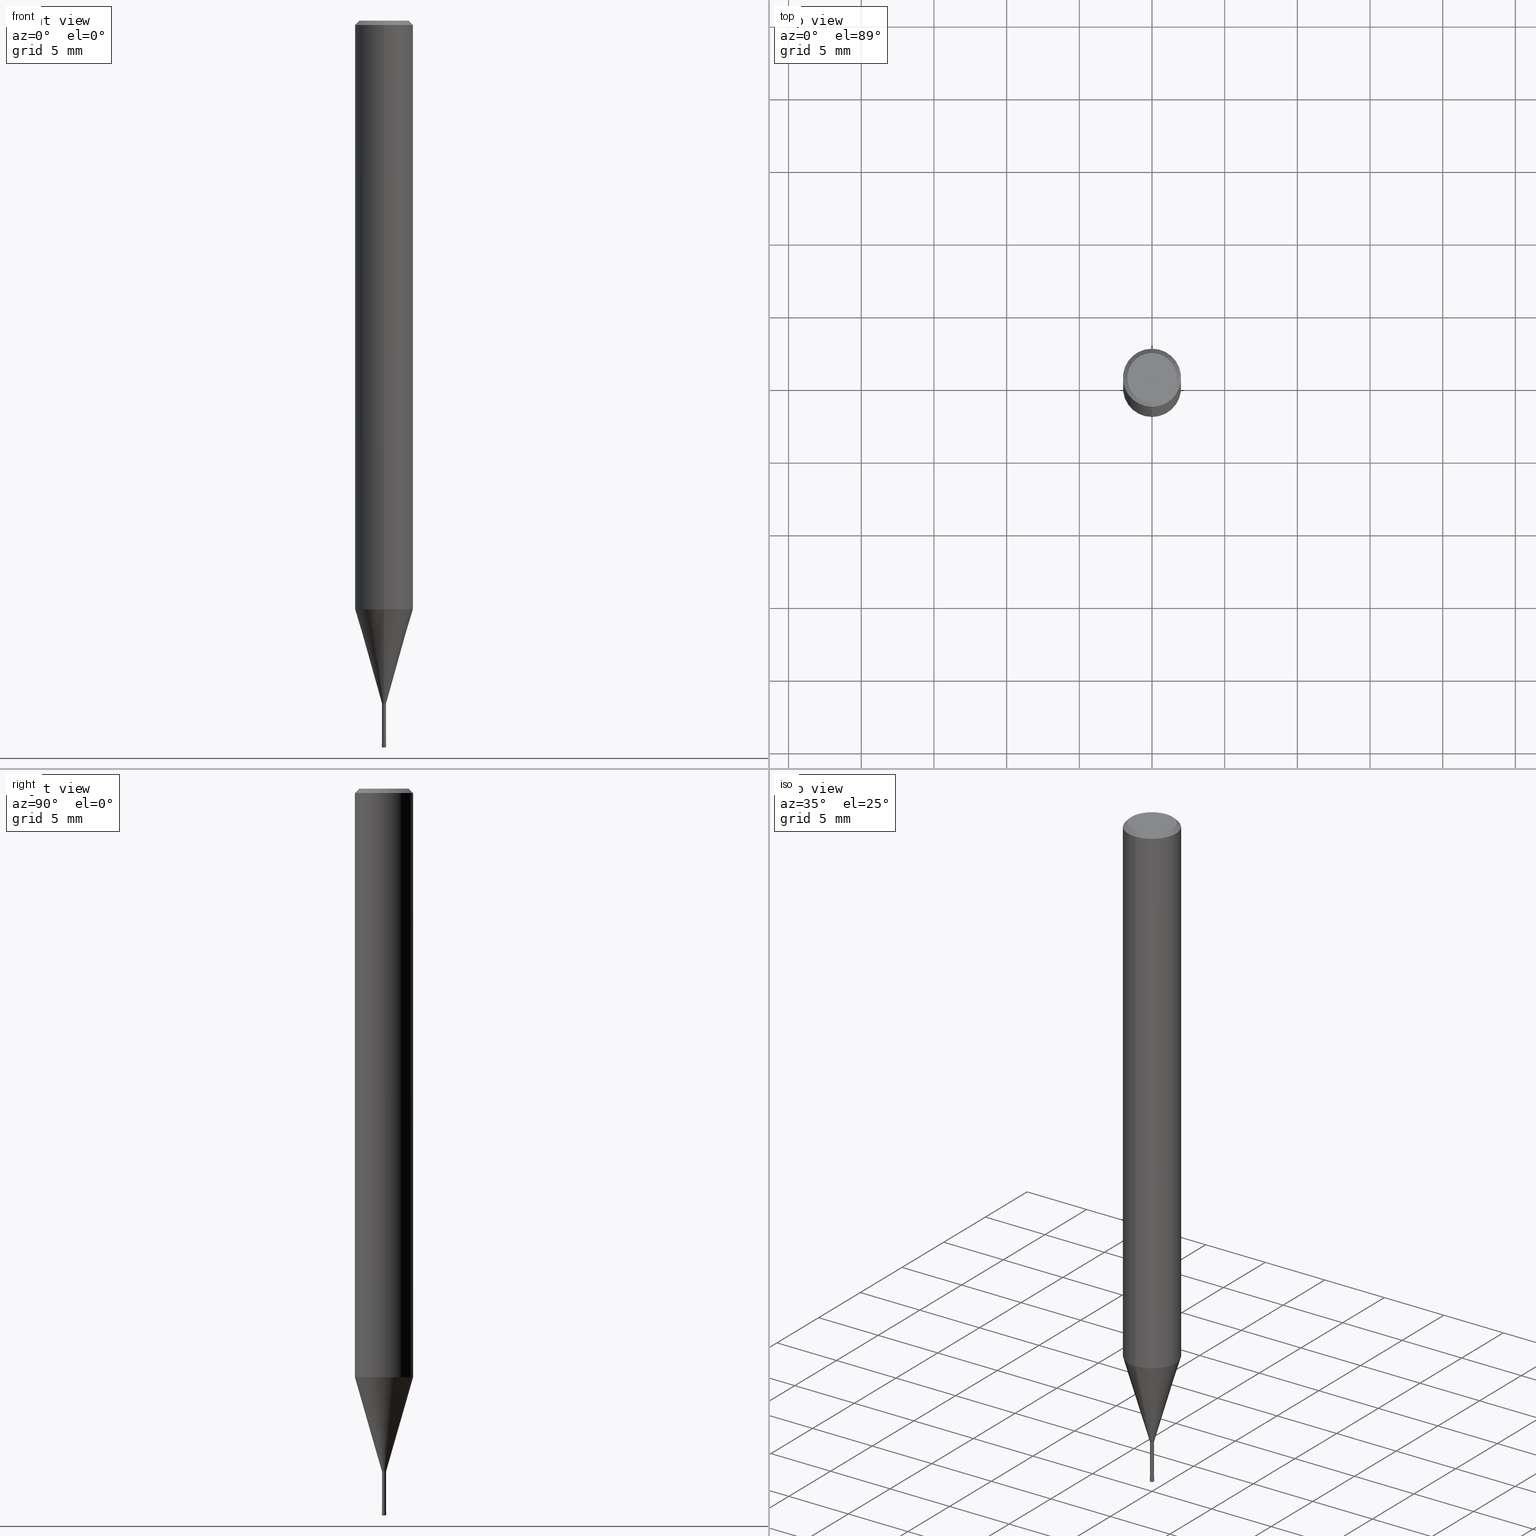
[diagram: canonical four-view strip — front | top / right | iso, engineering-drawing reading convention]
A machine part, canonical four-view strip (front | top / right | iso — engineering-drawing reading convention). The complete STEP part file that produces these views, byte-faithful:
ISO-10303-21;
HEADER;
FILE_DESCRIPTION(('no description'),'unknown implementation level');
FILE_NAME('HLRS2003-005-030E-Huellk.stp','  ',('CIMSOURCE GmbH'),('CADClick - KiM GmbH - www.kimweb.de'),'unknown preprocess','ACIS','unknown authorization');
FILE_SCHEMA(('automotive_design'));
ENDSEC;
DATA;
#1=MECHANICAL_DESIGN_GEOMETRIC_PRESENTATION_REPRESENTATION(' ',(#14,#15,#16,#17,#18,#19,#20,#21,#22,#23,#24,#25,#26,#27,#28,#29,#30,#31,#32,#33,#34,#35,#36,#37,#38,#39,#40,#41,#42,#43,#44,#45,#46,#47,#48,#49,#50,#51,#52,#53,#54,#55,#56,#57,#58,#59,#60,#61,#62,#63,#64,#65,#66,#67,#68,#69,#70,#71,#72,#73,#74,#75,#76,#77,#78,#79,#80),#10);
#2=PRODUCT_DEFINITION_CONTEXT('',#81,'design');
#3=APPLICATION_PROTOCOL_DEFINITION('INTERNATIONAL STANDARD','automotive_design',1994,#81);
#4=PRODUCT_CATEGORY_RELATIONSHIP('NONE','NONE',#82,#83);
#5=SHAPE_DEFINITION_REPRESENTATION(#84,#85);
#6=PRODUCT_DEFINITION_CONTEXT('',#86,'design');
#7=APPLICATION_PROTOCOL_DEFINITION('INTERNATIONAL STANDARD','automotive_design',1994,#86);
#8=PRODUCT_CATEGORY_RELATIONSHIP('NONE','NONE',#87,#88);
#9=SHAPE_DEFINITION_REPRESENTATION(#89,#90);
#10= (GEOMETRIC_REPRESENTATION_CONTEXT(3)GLOBAL_UNCERTAINTY_ASSIGNED_CONTEXT((#93))GLOBAL_UNIT_ASSIGNED_CONTEXT((#95,#96,#97))REPRESENTATION_CONTEXT('NONE','WORKSPACE'));
#14=STYLED_ITEM('',(#99),#100);
#15=STYLED_ITEM('',(#101),#102);
#16=STYLED_ITEM('',(#103),#104);
#17=STYLED_ITEM('',(#105),#106);
#18=STYLED_ITEM('',(#107),#108);
#19=STYLED_ITEM('',(#109),#110);
#20=STYLED_ITEM('',(#111),#112);
#21=STYLED_ITEM('',(#113),#114);
#22=STYLED_ITEM('',(#115),#116);
#23=STYLED_ITEM('',(#117),#118);
#24=STYLED_ITEM('',(#119),#120);
#25=STYLED_ITEM('',(#121),#122);
#26=STYLED_ITEM('',(#123),#124);
#27=STYLED_ITEM('',(#125),#126);
#28=STYLED_ITEM('',(#127),#128);
#29=STYLED_ITEM('',(#129),#130);
#30=STYLED_ITEM('',(#131),#132);
#31=STYLED_ITEM('',(#133),#134);
#32=STYLED_ITEM('',(#135),#136);
#33=STYLED_ITEM('',(#137),#138);
#34=STYLED_ITEM('',(#139),#140);
#35=STYLED_ITEM('',(#141),#142);
#36=STYLED_ITEM('',(#143),#144);
#37=STYLED_ITEM('',(#145),#146);
#38=STYLED_ITEM('',(#147),#148);
#39=STYLED_ITEM('',(#149),#150);
#40=STYLED_ITEM('',(#151),#152);
#41=STYLED_ITEM('',(#153),#154);
#42=STYLED_ITEM('',(#155),#156);
#43=STYLED_ITEM('',(#157),#158);
#44=STYLED_ITEM('',(#159),#160);
#45=STYLED_ITEM('',(#161),#162);
#46=STYLED_ITEM('',(#163),#164);
#47=STYLED_ITEM('',(#165),#166);
#48=STYLED_ITEM('',(#167),#168);
#49=STYLED_ITEM('',(#169),#170);
#50=STYLED_ITEM('',(#171),#172);
#51=STYLED_ITEM('',(#173),#174);
#52=STYLED_ITEM('',(#175),#176);
#53=STYLED_ITEM('',(#177),#178);
#54=STYLED_ITEM('',(#179),#180);
#55=STYLED_ITEM('',(#181),#182);
#56=STYLED_ITEM('',(#183),#184);
#57=STYLED_ITEM('',(#185),#186);
#58=STYLED_ITEM('',(#187),#188);
#59=STYLED_ITEM('',(#189),#190);
#60=STYLED_ITEM('',(#191),#192);
#61=STYLED_ITEM('',(#193),#194);
#62=STYLED_ITEM('',(#195),#196);
#63=STYLED_ITEM('',(#197),#198);
#64=STYLED_ITEM('',(#199),#200);
#65=STYLED_ITEM('',(#201),#202);
#66=STYLED_ITEM('',(#203),#204);
#67=STYLED_ITEM('',(#205),#206);
#68=STYLED_ITEM('',(#207),#208);
#69=STYLED_ITEM('',(#209),#210);
#70=STYLED_ITEM('',(#211),#212);
#71=STYLED_ITEM('',(#213),#214);
#72=STYLED_ITEM('',(#215),#216);
#73=STYLED_ITEM('',(#217),#218);
#74=STYLED_ITEM('',(#219),#220);
#75=STYLED_ITEM('',(#221),#222);
#76=STYLED_ITEM('',(#223),#224);
#77=STYLED_ITEM('',(#225),#226);
#78=STYLED_ITEM('',(#227),#228);
#79=STYLED_ITEM('',(#229),#230);
#80=STYLED_ITEM('',(#231),#232);
#81=APPLICATION_CONTEXT(' ');
#82=PRODUCT_CATEGORY('part','NONE');
#83=PRODUCT_RELATED_PRODUCT_CATEGORY('detail',' ',(#233));
#84=PRODUCT_DEFINITION_SHAPE('NONE','NONE',#234);
#85=ADVANCED_BREP_SHAPE_REPRESENTATION('1',(#208,#235),#10);
#86=APPLICATION_CONTEXT(' ');
#87=PRODUCT_CATEGORY('part','NONE');
#88=PRODUCT_RELATED_PRODUCT_CATEGORY('detail',' ',(#236));
#89=PRODUCT_DEFINITION_SHAPE('NONE','NONE',#237);
#90=ADVANCED_BREP_SHAPE_REPRESENTATION('2',(#160,#238),#10);
#93=UNCERTAINTY_MEASURE_WITH_UNIT(LENGTH_MEASURE(1.0E-006),#95,'','');
#95= (CONVERSION_BASED_UNIT('MILLIMETRE',#241)LENGTH_UNIT()NAMED_UNIT(#244));
#96= (NAMED_UNIT(#246)PLANE_ANGLE_UNIT()SI_UNIT($,.RADIAN.));
#97= (NAMED_UNIT(#246)SOLID_ANGLE_UNIT()SI_UNIT($,.STERADIAN.));
#99=PRESENTATION_STYLE_ASSIGNMENT((#252));
#100=ADVANCED_FACE('',(#253),#254,.T.);
#101=PRESENTATION_STYLE_ASSIGNMENT((#255));
#102=ADVANCED_FACE('',(#256),#257,.T.);
#103=PRESENTATION_STYLE_ASSIGNMENT((#258));
#104=VERTEX_POINT('',#259);
#105=PRESENTATION_STYLE_ASSIGNMENT((#260));
#106=EDGE_CURVE('',#146,#224,#261,.T.);
#107=PRESENTATION_STYLE_ASSIGNMENT((#262));
#108=EDGE_CURVE('',#220,#144,#263,.T.);
#109=PRESENTATION_STYLE_ASSIGNMENT((#264));
#110=ADVANCED_FACE('',(#265),#266,.T.);
#111=PRESENTATION_STYLE_ASSIGNMENT((#267));
#112=ADVANCED_FACE('',(#268),#269,.T.);
#113=PRESENTATION_STYLE_ASSIGNMENT((#270));
#114=EDGE_CURVE('',#130,#118,#271,.T.);
#115=PRESENTATION_STYLE_ASSIGNMENT((#272));
#116=ADVANCED_FACE('',(#273),#274,.T.);
#117=PRESENTATION_STYLE_ASSIGNMENT((#275));
#118=VERTEX_POINT('',#276);
#119=PRESENTATION_STYLE_ASSIGNMENT((#277));
#120=VERTEX_POINT('',#278);
#121=PRESENTATION_STYLE_ASSIGNMENT((#279));
#122=EDGE_CURVE('',#196,#126,#280,.T.);
#123=PRESENTATION_STYLE_ASSIGNMENT((#281));
#124=ADVANCED_FACE('',(#282),#283,.T.);
#125=PRESENTATION_STYLE_ASSIGNMENT((#284));
#126=VERTEX_POINT('',#285);
#127=PRESENTATION_STYLE_ASSIGNMENT((#286));
#128=VERTEX_POINT('',#287);
#129=PRESENTATION_STYLE_ASSIGNMENT((#288));
#130=VERTEX_POINT('',#289);
#131=PRESENTATION_STYLE_ASSIGNMENT((#290));
#132=ADVANCED_FACE('',(#291),#292,.T.);
#133=PRESENTATION_STYLE_ASSIGNMENT((#293));
#134=EDGE_CURVE('',#126,#196,#294,.T.);
#135=PRESENTATION_STYLE_ASSIGNMENT((#295));
#136=VERTEX_POINT('',#296);
#137=PRESENTATION_STYLE_ASSIGNMENT((#297));
#138=EDGE_CURVE('',#232,#220,#298,.T.);
#139=PRESENTATION_STYLE_ASSIGNMENT((#299));
#140=EDGE_CURVE('',#104,#118,#300,.T.);
#141=PRESENTATION_STYLE_ASSIGNMENT((#301));
#142=EDGE_CURVE('',#120,#232,#302,.T.);
#143=PRESENTATION_STYLE_ASSIGNMENT((#303));
#144=VERTEX_POINT('',#304);
#145=PRESENTATION_STYLE_ASSIGNMENT((#305));
#146=VERTEX_POINT('',#306);
#147=PRESENTATION_STYLE_ASSIGNMENT((#307));
#148=ADVANCED_FACE('',(#308),#309,.T.);
#149=PRESENTATION_STYLE_ASSIGNMENT((#310));
#150=ADVANCED_FACE('',(#311),#312,.T.);
#151=PRESENTATION_STYLE_ASSIGNMENT((#313));
#152=EDGE_CURVE('',#136,#216,#314,.T.);
#153=PRESENTATION_STYLE_ASSIGNMENT((#315));
#154=EDGE_CURVE('',#216,#136,#316,.T.);
#155=PRESENTATION_STYLE_ASSIGNMENT((#317));
#156=EDGE_CURVE('',#136,#104,#318,.T.);
#157=PRESENTATION_STYLE_ASSIGNMENT((#319));
#158=EDGE_CURVE('',#128,#214,#320,.T.);
#159=PRESENTATION_STYLE_ASSIGNMENT((#321));
#160=MANIFOLD_SOLID_BREP('2',#322);
#161=PRESENTATION_STYLE_ASSIGNMENT((#323));
#162=EDGE_CURVE('',#130,#180,#324,.T.);
#163=PRESENTATION_STYLE_ASSIGNMENT((#325));
#164=EDGE_CURVE('',#128,#222,#326,.T.);
#165=PRESENTATION_STYLE_ASSIGNMENT((#327));
#166=EDGE_CURVE('',#120,#196,#328,.T.);
#167=PRESENTATION_STYLE_ASSIGNMENT((#329));
#168=EDGE_CURVE('',#104,#180,#330,.T.);
#169=PRESENTATION_STYLE_ASSIGNMENT((#331));
#170=EDGE_CURVE('',#126,#232,#332,.T.);
#171=PRESENTATION_STYLE_ASSIGNMENT((#333));
#172=ADVANCED_FACE('',(#334),#335,.T.);
#173=PRESENTATION_STYLE_ASSIGNMENT((#336));
#174=EDGE_CURVE('',#180,#130,#337,.T.);
#175=PRESENTATION_STYLE_ASSIGNMENT((#338));
#176=ADVANCED_FACE('',(#339),#340,.T.);
#177=PRESENTATION_STYLE_ASSIGNMENT((#341));
#178=ADVANCED_FACE('',(#342),#343,.T.);
#179=PRESENTATION_STYLE_ASSIGNMENT((#344));
#180=VERTEX_POINT('',#345);
#181=PRESENTATION_STYLE_ASSIGNMENT((#346));
#182=ADVANCED_FACE('',(#347),#348,.T.);
#183=PRESENTATION_STYLE_ASSIGNMENT((#349));
#184=VERTEX_POINT('',#350);
#185=PRESENTATION_STYLE_ASSIGNMENT((#351));
#186=EDGE_CURVE('',#222,#184,#352,.T.);
#187=PRESENTATION_STYLE_ASSIGNMENT((#353));
#188=EDGE_CURVE('',#118,#104,#354,.T.);
#189=PRESENTATION_STYLE_ASSIGNMENT((#355));
#190=EDGE_CURVE('',#224,#222,#356,.T.);
#191=PRESENTATION_STYLE_ASSIGNMENT((#357));
#192=ADVANCED_FACE('',(#358),#359,.T.);
#193=PRESENTATION_STYLE_ASSIGNMENT((#360));
#194=ADVANCED_FACE('',(#361),#362,.T.);
#195=PRESENTATION_STYLE_ASSIGNMENT((#363));
#196=VERTEX_POINT('',#364);
#197=PRESENTATION_STYLE_ASSIGNMENT((#365));
#198=EDGE_CURVE('',#232,#120,#366,.T.);
#199=PRESENTATION_STYLE_ASSIGNMENT((#367));
#200=EDGE_CURVE('',#224,#146,#368,.T.);
#201=PRESENTATION_STYLE_ASSIGNMENT((#369));
#202=EDGE_CURVE('',#118,#216,#370,.T.);
#203=PRESENTATION_STYLE_ASSIGNMENT((#371));
#204=EDGE_CURVE('',#214,#128,#372,.T.);
#205=PRESENTATION_STYLE_ASSIGNMENT((#373));
#206=EDGE_CURVE('',#184,#222,#374,.T.);
#207=PRESENTATION_STYLE_ASSIGNMENT((#375));
#208=MANIFOLD_SOLID_BREP('1',#376);
#209=PRESENTATION_STYLE_ASSIGNMENT((#377));
#210=EDGE_CURVE('',#184,#146,#378,.T.);
#211=PRESENTATION_STYLE_ASSIGNMENT((#379));
#212=EDGE_CURVE('',#184,#214,#380,.T.);
#213=PRESENTATION_STYLE_ASSIGNMENT((#381));
#214=VERTEX_POINT('',#382);
#215=PRESENTATION_STYLE_ASSIGNMENT((#383));
#216=VERTEX_POINT('',#384);
#217=PRESENTATION_STYLE_ASSIGNMENT((#385));
#218=ADVANCED_FACE('',(#386),#387,.T.);
#219=PRESENTATION_STYLE_ASSIGNMENT((#388));
#220=VERTEX_POINT('',#389);
#221=PRESENTATION_STYLE_ASSIGNMENT((#390));
#222=VERTEX_POINT('',#391);
#223=PRESENTATION_STYLE_ASSIGNMENT((#392));
#224=VERTEX_POINT('',#393);
#225=PRESENTATION_STYLE_ASSIGNMENT((#394));
#226=ADVANCED_FACE('',(#395,#396),#397,.T.);
#227=PRESENTATION_STYLE_ASSIGNMENT((#398));
#228=EDGE_CURVE('',#144,#120,#399,.T.);
#229=PRESENTATION_STYLE_ASSIGNMENT((#400));
#230=EDGE_CURVE('',#144,#220,#401,.T.);
#231=PRESENTATION_STYLE_ASSIGNMENT((#402));
#232=VERTEX_POINT('',#403);
#233=PRODUCT('1','1','PART-1-DESC',(#404));
#234=PRODUCT_DEFINITION('NONE','NONE',#405,#2);
#235=AXIS2_PLACEMENT_3D('',#406,#407,#408);
#236=PRODUCT('2','2','PART-2-DESC',(#409));
#237=PRODUCT_DEFINITION('NONE','NONE',#410,#6);
#238=AXIS2_PLACEMENT_3D('',#411,#412,#413);
#241=LENGTH_MEASURE_WITH_UNIT(LENGTH_MEASURE(1.0),#414);
#244=DIMENSIONAL_EXPONENTS(1.0,0.0,0.0,0.0,0.0,0.0,0.0);
#246=DIMENSIONAL_EXPONENTS(0.0,0.0,0.0,0.0,0.0,0.0,0.0);
#252=SURFACE_STYLE_USAGE(.BOTH.,#415);
#253=FACE_OUTER_BOUND('',#416,.T.);
#254=PLANE('',#417);
#255=SURFACE_STYLE_USAGE(.BOTH.,#418);
#256=FACE_OUTER_BOUND('',#419,.T.);
#257=CONICAL_SURFACE('',#420,1.06745,0.279253818445948);
#258=POINT_STYLE(' ',#421,POSITIVE_LENGTH_MEASURE(1.0E-006),#422);
#259=CARTESIAN_POINT('',(0.0,0.13495,-47.0));
#260=CURVE_STYLE('',#423,POSITIVE_LENGTH_MEASURE(1.0E-006),#424);
#261=CIRCLE('',#425,0.1499);
#262=CURVE_STYLE('',#426,POSITIVE_LENGTH_MEASURE(1.0E-006),#427);
#263=CIRCLE('',#428,2.0);
#264=SURFACE_STYLE_USAGE(.BOTH.,#429);
#265=FACE_OUTER_BOUND('',#430,.T.);
#266=CONICAL_SURFACE('',#431,0.14995,0.000399999978666625);
#267=SURFACE_STYLE_USAGE(.BOTH.,#432);
#268=FACE_OUTER_BOUND('',#433,.T.);
#269=CONICAL_SURFACE('',#434,0.14995,0.000399999978666625);
#270=CURVE_STYLE('',#435,POSITIVE_LENGTH_MEASURE(1.0E-006),#436);
#271=LINE('',#437,#438);
#272=SURFACE_STYLE_USAGE(.BOTH.,#439);
#273=FACE_OUTER_BOUND('',#440,.T.);
#274=CYLINDRICAL_SURFACE('',#441,0.13495);
#275=POINT_STYLE(' ',#442,POSITIVE_LENGTH_MEASURE(1.0E-006),#443);
#276=CARTESIAN_POINT('',(1.6526062744833E-017,-0.13495,-47.0));
#277=POINT_STYLE(' ',#444,POSITIVE_LENGTH_MEASURE(1.0E-006),#445);
#278=CARTESIAN_POINT('',(2.44921270764475E-016,-2.0,-0.299999999999997));
#279=CURVE_STYLE('',#446,POSITIVE_LENGTH_MEASURE(1.0E-006),#447);
#280=CIRCLE('',#448,1.7);
#281=SURFACE_STYLE_USAGE(.BOTH.,#449);
#282=FACE_OUTER_BOUND('',#450,.T.);
#283=PLANE('',#451);
#284=POINT_STYLE(' ',#452,POSITIVE_LENGTH_MEASURE(1.0E-006),#453);
#285=CARTESIAN_POINT('',(0.0,1.7,0.0));
#286=POINT_STYLE(' ',#454,POSITIVE_LENGTH_MEASURE(1.0E-006),#455);
#287=CARTESIAN_POINT('',(0.0,0.1,-50.0));
#288=POINT_STYLE(' ',#456,POSITIVE_LENGTH_MEASURE(1.0E-006),#457);
#289=CARTESIAN_POINT('',(1.6526062744833E-017,-0.13495,-49.7));
#290=SURFACE_STYLE_USAGE(.BOTH.,#458);
#291=FACE_OUTER_BOUND('',#459,.T.);
#292=PLANE('',#460);
#293=CURVE_STYLE('',#461,POSITIVE_LENGTH_MEASURE(1.0E-006),#462);
#294=CIRCLE('',#463,1.7);
#295=POINT_STYLE(' ',#464,POSITIVE_LENGTH_MEASURE(1.0E-006),#465);
#296=CARTESIAN_POINT('',(0.0,1.99995,-40.496));
#297=CURVE_STYLE('',#466,POSITIVE_LENGTH_MEASURE(1.0E-006),#467);
#298=LINE('',#468,#469);
#299=CURVE_STYLE('',#470,POSITIVE_LENGTH_MEASURE(1.0E-006),#471);
#300=CIRCLE('',#472,0.13495);
#301=CURVE_STYLE('',#473,POSITIVE_LENGTH_MEASURE(1.0E-006),#474);
#302=CIRCLE('',#475,2.0);
#303=POINT_STYLE(' ',#476,POSITIVE_LENGTH_MEASURE(1.0E-006),#477);
#304=CARTESIAN_POINT('',(2.44921270764475E-016,-2.0,-40.496));
#305=POINT_STYLE(' ',#478,POSITIVE_LENGTH_MEASURE(1.0E-006),#479);
#306=CARTESIAN_POINT('',(1.83568492437974E-017,-0.1499,-49.7));
#307=SURFACE_STYLE_USAGE(.BOTH.,#480);
#308=FACE_OUTER_BOUND('',#481,.T.);
#309=CYLINDRICAL_SURFACE('',#482,0.13495);
#310=SURFACE_STYLE_USAGE(.BOTH.,#483);
#311=FACE_OUTER_BOUND('',#484,.T.);
#312=CYLINDRICAL_SURFACE('',#485,2.0);
#313=CURVE_STYLE('',#486,POSITIVE_LENGTH_MEASURE(1.0E-006),#487);
#314=CIRCLE('',#488,1.99995);
#315=CURVE_STYLE('',#489,POSITIVE_LENGTH_MEASURE(1.0E-006),#490);
#316=CIRCLE('',#491,1.99995);
#317=CURVE_STYLE('',#492,POSITIVE_LENGTH_MEASURE(1.0E-006),#493);
#318=LINE('',#494,#495);
#319=CURVE_STYLE('',#496,POSITIVE_LENGTH_MEASURE(1.0E-006),#497);
#320=CIRCLE('',#498,0.1);
#321=SURFACE_STYLE_USAGE(.BOTH.,#499);
#322=CLOSED_SHELL('',(#172,#112,#124,#110,#218,#192));
#323=CURVE_STYLE('',#500,POSITIVE_LENGTH_MEASURE(1.0E-006),#501);
#324=CIRCLE('',#502,0.13495);
#325=CURVE_STYLE('',#503,POSITIVE_LENGTH_MEASURE(1.0E-006),#504);
#326=CIRCLE('',#505,0.0499999999999998);
#327=CURVE_STYLE('',#506,POSITIVE_LENGTH_MEASURE(1.0E-006),#507);
#328=LINE('',#508,#509);
#329=CURVE_STYLE('',#510,POSITIVE_LENGTH_MEASURE(1.0E-006),#511);
#330=LINE('',#512,#513);
#331=CURVE_STYLE('',#514,POSITIVE_LENGTH_MEASURE(1.0E-006),#515);
#332=LINE('',#516,#517);
#333=SURFACE_STYLE_USAGE(.BOTH.,#518);
#334=FACE_OUTER_BOUND('',#519,.T.);
#335=TOROIDAL_SURFACE('',#520,0.1,0.0499999999999998);
#336=CURVE_STYLE('',#521,POSITIVE_LENGTH_MEASURE(1.0E-006),#522);
#337=CIRCLE('',#523,0.13495);
#338=SURFACE_STYLE_USAGE(.BOTH.,#524);
#339=FACE_OUTER_BOUND('',#525,.T.);
#340=CONICAL_SURFACE('',#526,1.85,0.785398163397453);
#341=SURFACE_STYLE_USAGE(.BOTH.,#527);
#342=FACE_OUTER_BOUND('',#528,.T.);
#343=CYLINDRICAL_SURFACE('',#529,2.0);
#344=POINT_STYLE(' ',#530,POSITIVE_LENGTH_MEASURE(1.0E-006),#531);
#345=CARTESIAN_POINT('',(0.0,0.13495,-49.7));
#346=SURFACE_STYLE_USAGE(.BOTH.,#532);
#347=FACE_OUTER_BOUND('',#533,.T.);
#348=CONICAL_SURFACE('',#534,1.06745,0.279253818445948);
#349=POINT_STYLE(' ',#535,POSITIVE_LENGTH_MEASURE(1.0E-006),#536);
#350=CARTESIAN_POINT('',(1.83690953073357E-017,-0.15,-49.95));
#351=CURVE_STYLE('',#537,POSITIVE_LENGTH_MEASURE(1.0E-006),#538);
#352=CIRCLE('',#539,0.15);
#353=CURVE_STYLE('',#540,POSITIVE_LENGTH_MEASURE(1.0E-006),#541);
#354=CIRCLE('',#542,0.13495);
#355=CURVE_STYLE('',#543,POSITIVE_LENGTH_MEASURE(1.0E-006),#544);
#356=LINE('',#545,#546);
#357=SURFACE_STYLE_USAGE(.BOTH.,#547);
#358=FACE_OUTER_BOUND('',#548,.T.);
#359=PLANE('',#549);
#360=SURFACE_STYLE_USAGE(.BOTH.,#550);
#361=FACE_OUTER_BOUND('',#551,.T.);
#362=CONICAL_SURFACE('',#552,1.85,0.785398163397453);
#363=POINT_STYLE(' ',#553,POSITIVE_LENGTH_MEASURE(1.0E-006),#554);
#364=CARTESIAN_POINT('',(2.08183080149804E-016,-1.7,0.0));
#365=CURVE_STYLE('',#555,POSITIVE_LENGTH_MEASURE(1.0E-006),#556);
#366=CIRCLE('',#557,2.0);
#367=CURVE_STYLE('',#558,POSITIVE_LENGTH_MEASURE(1.0E-006),#559);
#368=CIRCLE('',#560,0.1499);
#369=CURVE_STYLE('',#561,POSITIVE_LENGTH_MEASURE(1.0E-006),#562);
#370=LINE('',#563,#564);
#371=CURVE_STYLE('',#565,POSITIVE_LENGTH_MEASURE(1.0E-006),#566);
#372=CIRCLE('',#567,0.1);
#373=CURVE_STYLE('',#568,POSITIVE_LENGTH_MEASURE(1.0E-006),#569);
#374=CIRCLE('',#570,0.15);
#375=SURFACE_STYLE_USAGE(.BOTH.,#571);
#376=CLOSED_SHELL('',(#116,#182,#150,#194,#226,#100,#176,#178,#102,#148,#132));
#377=CURVE_STYLE('',#572,POSITIVE_LENGTH_MEASURE(1.0E-006),#573);
#378=LINE('',#574,#575);
#379=CURVE_STYLE('',#576,POSITIVE_LENGTH_MEASURE(1.0E-006),#577);
#380=CIRCLE('',#578,0.0499999999999998);
#381=POINT_STYLE(' ',#579,POSITIVE_LENGTH_MEASURE(1.0E-006),#580);
#382=CARTESIAN_POINT('',(1.22460635382238E-017,-0.1,-50.0));
#383=POINT_STYLE(' ',#581,POSITIVE_LENGTH_MEASURE(1.0E-006),#582);
#384=CARTESIAN_POINT('',(2.44915147732706E-016,-1.99995,-40.496));
#385=SURFACE_STYLE_USAGE(.BOTH.,#583);
#386=FACE_OUTER_BOUND('',#584,.T.);
#387=TOROIDAL_SURFACE('',#585,0.1,0.0499999999999998);
#388=POINT_STYLE(' ',#586,POSITIVE_LENGTH_MEASURE(1.0E-006),#587);
#389=CARTESIAN_POINT('',(0.0,2.0,-40.496));
#390=POINT_STYLE(' ',#588,POSITIVE_LENGTH_MEASURE(1.0E-006),#589);
#391=CARTESIAN_POINT('',(0.0,0.15,-49.95));
#392=POINT_STYLE(' ',#590,POSITIVE_LENGTH_MEASURE(1.0E-006),#591);
#393=CARTESIAN_POINT('',(0.0,0.1499,-49.7));
#394=SURFACE_STYLE_USAGE(.BOTH.,#592);
#395=FACE_OUTER_BOUND('',#593,.T.);
#396=FACE_BOUND('',#594,.T.);
#397=PLANE('',#595);
#398=CURVE_STYLE('',#596,POSITIVE_LENGTH_MEASURE(1.0E-006),#597);
#399=LINE('',#598,#599);
#400=CURVE_STYLE('',#600,POSITIVE_LENGTH_MEASURE(1.0E-006),#601);
#401=CIRCLE('',#602,2.0);
#402=POINT_STYLE(' ',#603,POSITIVE_LENGTH_MEASURE(1.0E-006),#604);
#403=CARTESIAN_POINT('',(0.0,2.0,-0.299999999999997));
#404=PRODUCT_CONTEXT('',#81,'mechanical');
#405=PRODUCT_DEFINITION_FORMATION_WITH_SPECIFIED_SOURCE(' ','NONE',#233,.NOT_KNOWN.);
#406=CARTESIAN_POINT('',(0.0,0.0,0.0));
#407=DIRECTION('',(0.0,0.0,1.0));
#408=DIRECTION('',(1.0,0.0,0.0));
#409=PRODUCT_CONTEXT('',#86,'mechanical');
#410=PRODUCT_DEFINITION_FORMATION_WITH_SPECIFIED_SOURCE(' ','NONE',#236,.NOT_KNOWN.);
#411=CARTESIAN_POINT('',(0.0,0.0,0.0));
#412=DIRECTION('',(0.0,0.0,1.0));
#413=DIRECTION('',(1.0,0.0,0.0));
#414= (NAMED_UNIT(#244)LENGTH_UNIT()SI_UNIT(.MILLI.,.METRE.));
#415=SURFACE_SIDE_STYLE('',(#606));
#416=EDGE_LOOP('',(#607,#608));
#417=AXIS2_PLACEMENT_3D('',#609,#610,#611);
#418=SURFACE_SIDE_STYLE('',(#612));
#419=EDGE_LOOP('',(#613,#614,#615,#616));
#420=AXIS2_PLACEMENT_3D('',#617,#618,#619);
#421=PRE_DEFINED_MARKER('');
#422=COLOUR_RGB('',0.498039215803146,0.498039215803146,0.498039215803146);
#423=DRAUGHTING_PRE_DEFINED_CURVE_FONT('continuous');
#424=COLOUR_RGB('',0.800000011920929,0.800000011920929,0.800000011920929);
#425=AXIS2_PLACEMENT_3D('',#620,#621,#622);
#426=DRAUGHTING_PRE_DEFINED_CURVE_FONT('continuous');
#427=COLOUR_RGB('',0.498039215803146,0.498039215803146,0.498039215803146);
#428=AXIS2_PLACEMENT_3D('',#623,#624,#625);
#429=SURFACE_SIDE_STYLE('',(#626));
#430=EDGE_LOOP('',(#627,#628,#629,#630));
#431=AXIS2_PLACEMENT_3D('',#631,#632,#633);
#432=SURFACE_SIDE_STYLE('',(#634));
#433=EDGE_LOOP('',(#635,#636,#637,#638));
#434=AXIS2_PLACEMENT_3D('',#639,#640,#641);
#435=DRAUGHTING_PRE_DEFINED_CURVE_FONT('continuous');
#436=COLOUR_RGB('',0.498039215803146,0.498039215803146,0.498039215803146);
#437=CARTESIAN_POINT('',(1.6526062744833E-017,-0.13495,-48.35));
#438=VECTOR('',#642,1.0);
#439=SURFACE_SIDE_STYLE('',(#643));
#440=EDGE_LOOP('',(#644,#645,#646,#647));
#441=AXIS2_PLACEMENT_3D('',#648,#649,#650);
#442=PRE_DEFINED_MARKER('');
#443=COLOUR_RGB('',0.498039215803146,0.498039215803146,0.498039215803146);
#444=PRE_DEFINED_MARKER('');
#445=COLOUR_RGB('',0.498039215803146,0.498039215803146,0.498039215803146);
#446=DRAUGHTING_PRE_DEFINED_CURVE_FONT('continuous');
#447=COLOUR_RGB('',0.498039215803146,0.498039215803146,0.498039215803146);
#448=AXIS2_PLACEMENT_3D('',#651,#652,#653);
#449=SURFACE_SIDE_STYLE('',(#654));
#450=EDGE_LOOP('',(#655,#656));
#451=AXIS2_PLACEMENT_3D('',#657,#658,#659);
#452=PRE_DEFINED_MARKER('');
#453=COLOUR_RGB('',0.498039215803146,0.498039215803146,0.498039215803146);
#454=PRE_DEFINED_MARKER('');
#455=COLOUR_RGB('',0.800000011920929,0.800000011920929,0.800000011920929);
#456=PRE_DEFINED_MARKER('');
#457=COLOUR_RGB('',0.498039215803146,0.498039215803146,0.498039215803146);
#458=SURFACE_SIDE_STYLE('',(#660));
#459=EDGE_LOOP('',(#661,#662));
#460=AXIS2_PLACEMENT_3D('',#663,#664,#665);
#461=DRAUGHTING_PRE_DEFINED_CURVE_FONT('continuous');
#462=COLOUR_RGB('',0.498039215803146,0.498039215803146,0.498039215803146);
#463=AXIS2_PLACEMENT_3D('',#666,#667,#668);
#464=PRE_DEFINED_MARKER('');
#465=COLOUR_RGB('',0.498039215803146,0.498039215803146,0.498039215803146);
#466=DRAUGHTING_PRE_DEFINED_CURVE_FONT('continuous');
#467=COLOUR_RGB('',0.498039215803146,0.498039215803146,0.498039215803146);
#468=CARTESIAN_POINT('',(-2.44921270764475E-016,2.0,-20.398));
#469=VECTOR('',#669,1.0);
#470=DRAUGHTING_PRE_DEFINED_CURVE_FONT('continuous');
#471=COLOUR_RGB('',0.498039215803146,0.498039215803146,0.498039215803146);
#472=AXIS2_PLACEMENT_3D('',#670,#671,#672);
#473=DRAUGHTING_PRE_DEFINED_CURVE_FONT('continuous');
#474=COLOUR_RGB('',0.498039215803146,0.498039215803146,0.498039215803146);
#475=AXIS2_PLACEMENT_3D('',#673,#674,#675);
#476=PRE_DEFINED_MARKER('');
#477=COLOUR_RGB('',0.498039215803146,0.498039215803146,0.498039215803146);
#478=PRE_DEFINED_MARKER('');
#479=COLOUR_RGB('',0.800000011920929,0.800000011920929,0.800000011920929);
#480=SURFACE_SIDE_STYLE('',(#676));
#481=EDGE_LOOP('',(#677,#678,#679,#680));
#482=AXIS2_PLACEMENT_3D('',#681,#682,#683);
#483=SURFACE_SIDE_STYLE('',(#684));
#484=EDGE_LOOP('',(#685,#686,#687,#688));
#485=AXIS2_PLACEMENT_3D('',#689,#690,#691);
#486=DRAUGHTING_PRE_DEFINED_CURVE_FONT('continuous');
#487=COLOUR_RGB('',0.498039215803146,0.498039215803146,0.498039215803146);
#488=AXIS2_PLACEMENT_3D('',#692,#693,#694);
#489=DRAUGHTING_PRE_DEFINED_CURVE_FONT('continuous');
#490=COLOUR_RGB('',0.498039215803146,0.498039215803146,0.498039215803146);
#491=AXIS2_PLACEMENT_3D('',#695,#696,#697);
#492=DRAUGHTING_PRE_DEFINED_CURVE_FONT('continuous');
#493=COLOUR_RGB('',0.498039215803146,0.498039215803146,0.498039215803146);
#494=CARTESIAN_POINT('',(-1.3072060523877E-016,1.06745,-43.748));
#495=VECTOR('',#698,1.0);
#496=DRAUGHTING_PRE_DEFINED_CURVE_FONT('continuous');
#497=COLOUR_RGB('',0.800000011920929,0.800000011920929,0.800000011920929);
#498=AXIS2_PLACEMENT_3D('',#699,#700,#701);
#499=SURFACE_SIDE_STYLE('',(#702));
#500=DRAUGHTING_PRE_DEFINED_CURVE_FONT('continuous');
#501=COLOUR_RGB('',0.498039215803146,0.498039215803146,0.498039215803146);
#502=AXIS2_PLACEMENT_3D('',#703,#704,#705);
#503=DRAUGHTING_PRE_DEFINED_CURVE_FONT('continuous');
#504=COLOUR_RGB('',0.800000011920929,0.800000011920929,0.800000011920929);
#505=AXIS2_PLACEMENT_3D('',#706,#707,#708);
#506=DRAUGHTING_PRE_DEFINED_CURVE_FONT('continuous');
#507=COLOUR_RGB('',0.498039215803146,0.498039215803146,0.498039215803146);
#508=CARTESIAN_POINT('',(2.2655217545714E-016,-1.85,-0.149999999999999));
#509=VECTOR('',#709,1.0);
#510=DRAUGHTING_PRE_DEFINED_CURVE_FONT('continuous');
#511=COLOUR_RGB('',0.498039215803146,0.498039215803146,0.498039215803146);
#512=CARTESIAN_POINT('',(-1.6526062744833E-017,0.13495,-48.35));
#513=VECTOR('',#710,1.0);
#514=DRAUGHTING_PRE_DEFINED_CURVE_FONT('continuous');
#515=COLOUR_RGB('',0.498039215803146,0.498039215803146,0.498039215803146);
#516=CARTESIAN_POINT('',(-2.2655217545714E-016,1.85,-0.149999999999999));
#517=VECTOR('',#711,1.0);
#518=SURFACE_SIDE_STYLE('',(#712));
#519=EDGE_LOOP('',(#713,#714,#715,#716));
#520=AXIS2_PLACEMENT_3D('',#717,#718,#719);
#521=DRAUGHTING_PRE_DEFINED_CURVE_FONT('continuous');
#522=COLOUR_RGB('',0.498039215803146,0.498039215803146,0.498039215803146);
#523=AXIS2_PLACEMENT_3D('',#720,#721,#722);
#524=SURFACE_SIDE_STYLE('',(#723));
#525=EDGE_LOOP('',(#724,#725,#726,#727));
#526=AXIS2_PLACEMENT_3D('',#728,#729,#730);
#527=SURFACE_SIDE_STYLE('',(#731));
#528=EDGE_LOOP('',(#732,#733,#734,#735));
#529=AXIS2_PLACEMENT_3D('',#736,#737,#738);
#530=PRE_DEFINED_MARKER('');
#531=COLOUR_RGB('',0.498039215803146,0.498039215803146,0.498039215803146);
#532=SURFACE_SIDE_STYLE('',(#739));
#533=EDGE_LOOP('',(#740,#741,#742,#743));
#534=AXIS2_PLACEMENT_3D('',#744,#745,#746);
#535=PRE_DEFINED_MARKER('');
#536=COLOUR_RGB('',0.800000011920929,0.800000011920929,0.800000011920929);
#537=DRAUGHTING_PRE_DEFINED_CURVE_FONT('continuous');
#538=COLOUR_RGB('',0.800000011920929,0.800000011920929,0.800000011920929);
#539=AXIS2_PLACEMENT_3D('',#747,#748,#749);
#540=DRAUGHTING_PRE_DEFINED_CURVE_FONT('continuous');
#541=COLOUR_RGB('',0.498039215803146,0.498039215803146,0.498039215803146);
#542=AXIS2_PLACEMENT_3D('',#750,#751,#752);
#543=DRAUGHTING_PRE_DEFINED_CURVE_FONT('continuous');
#544=COLOUR_RGB('',0.800000011920929,0.800000011920929,0.800000011920929);
#545=CARTESIAN_POINT('',(-1.83629722755666E-017,0.14995,-49.825));
#546=VECTOR('',#753,1.0);
#547=SURFACE_SIDE_STYLE('',(#754));
#548=EDGE_LOOP('',(#755,#756));
#549=AXIS2_PLACEMENT_3D('',#757,#758,#759);
#550=SURFACE_SIDE_STYLE('',(#760));
#551=EDGE_LOOP('',(#761,#762,#763,#764));
#552=AXIS2_PLACEMENT_3D('',#765,#766,#767);
#553=PRE_DEFINED_MARKER('');
#554=COLOUR_RGB('',0.498039215803146,0.498039215803146,0.498039215803146);
#555=DRAUGHTING_PRE_DEFINED_CURVE_FONT('continuous');
#556=COLOUR_RGB('',0.498039215803146,0.498039215803146,0.498039215803146);
#557=AXIS2_PLACEMENT_3D('',#768,#769,#770);
#558=DRAUGHTING_PRE_DEFINED_CURVE_FONT('continuous');
#559=COLOUR_RGB('',0.800000011920929,0.800000011920929,0.800000011920929);
#560=AXIS2_PLACEMENT_3D('',#771,#772,#773);
#561=DRAUGHTING_PRE_DEFINED_CURVE_FONT('continuous');
#562=COLOUR_RGB('',0.498039215803146,0.498039215803146,0.498039215803146);
#563=CARTESIAN_POINT('',(1.3072060523877E-016,-1.06745,-43.748));
#564=VECTOR('',#774,1.0);
#565=DRAUGHTING_PRE_DEFINED_CURVE_FONT('continuous');
#566=COLOUR_RGB('',0.800000011920929,0.800000011920929,0.800000011920929);
#567=AXIS2_PLACEMENT_3D('',#775,#776,#777);
#568=DRAUGHTING_PRE_DEFINED_CURVE_FONT('continuous');
#569=COLOUR_RGB('',0.800000011920929,0.800000011920929,0.800000011920929);
#570=AXIS2_PLACEMENT_3D('',#778,#779,#780);
#571=SURFACE_SIDE_STYLE('',(#781));
#572=DRAUGHTING_PRE_DEFINED_CURVE_FONT('continuous');
#573=COLOUR_RGB('',0.800000011920929,0.800000011920929,0.800000011920929);
#574=CARTESIAN_POINT('',(1.83629722755666E-017,-0.14995,-49.825));
#575=VECTOR('',#782,1.0);
#576=DRAUGHTING_PRE_DEFINED_CURVE_FONT('continuous');
#577=COLOUR_RGB('',0.800000011920929,0.800000011920929,0.800000011920929);
#578=AXIS2_PLACEMENT_3D('',#783,#784,#785);
#579=PRE_DEFINED_MARKER('');
#580=COLOUR_RGB('',0.800000011920929,0.800000011920929,0.800000011920929);
#581=PRE_DEFINED_MARKER('');
#582=COLOUR_RGB('',0.498039215803146,0.498039215803146,0.498039215803146);
#583=SURFACE_SIDE_STYLE('',(#786));
#584=EDGE_LOOP('',(#787,#788,#789,#790));
#585=AXIS2_PLACEMENT_3D('',#791,#792,#793);
#586=PRE_DEFINED_MARKER('');
#587=COLOUR_RGB('',0.498039215803146,0.498039215803146,0.498039215803146);
#588=PRE_DEFINED_MARKER('');
#589=COLOUR_RGB('',0.800000011920929,0.800000011920929,0.800000011920929);
#590=PRE_DEFINED_MARKER('');
#591=COLOUR_RGB('',0.800000011920929,0.800000011920929,0.800000011920929);
#592=SURFACE_SIDE_STYLE('',(#794));
#593=EDGE_LOOP('',(#795,#796));
#594=EDGE_LOOP('',(#797,#798));
#595=AXIS2_PLACEMENT_3D('',#799,#800,#801);
#596=DRAUGHTING_PRE_DEFINED_CURVE_FONT('continuous');
#597=COLOUR_RGB('',0.498039215803146,0.498039215803146,0.498039215803146);
#598=CARTESIAN_POINT('',(2.44921270764475E-016,-2.0,-20.398));
#599=VECTOR('',#802,1.0);
#600=DRAUGHTING_PRE_DEFINED_CURVE_FONT('continuous');
#601=COLOUR_RGB('',0.498039215803146,0.498039215803146,0.498039215803146);
#602=AXIS2_PLACEMENT_3D('',#803,#804,#805);
#603=PRE_DEFINED_MARKER('');
#604=COLOUR_RGB('',0.498039215803146,0.498039215803146,0.498039215803146);
#606=SURFACE_STYLE_FILL_AREA(#806);
#607=ORIENTED_EDGE('',*,*,#134,.F.);
#608=ORIENTED_EDGE('',*,*,#122,.F.);
#609=CARTESIAN_POINT('',(0.0,0.85,0.0));
#610=DIRECTION('',(-0.0,0.0,1.0));
#611=DIRECTION('',(0.0,-1.0,0.0));
#612=SURFACE_STYLE_FILL_AREA(#807);
#613=ORIENTED_EDGE('',*,*,#156,.T.);
#614=ORIENTED_EDGE('',*,*,#188,.F.);
#615=ORIENTED_EDGE('',*,*,#202,.T.);
#616=ORIENTED_EDGE('',*,*,#154,.T.);
#617=CARTESIAN_POINT('',(0.0,0.0,-43.748));
#618=DIRECTION('',(-0.0,-0.0,1.0));
#619=DIRECTION('',(0.0,1.0,0.0));
#620=CARTESIAN_POINT('',(0.0,0.0,-49.7));
#621=DIRECTION('',(0.0,0.0,-1.0));
#622=DIRECTION('',(0.0,1.0,0.0));
#623=CARTESIAN_POINT('',(0.0,0.0,-40.496));
#624=DIRECTION('',(0.0,0.0,-1.0));
#625=DIRECTION('',(0.0,1.0,0.0));
#626=SURFACE_STYLE_FILL_AREA(#808);
#627=ORIENTED_EDGE('',*,*,#190,.T.);
#628=ORIENTED_EDGE('',*,*,#206,.F.);
#629=ORIENTED_EDGE('',*,*,#210,.T.);
#630=ORIENTED_EDGE('',*,*,#106,.T.);
#631=CARTESIAN_POINT('',(0.0,0.0,-49.825));
#632=DIRECTION('',(0.0,-0.0,-1.0));
#633=DIRECTION('',(0.0,1.0,0.0));
#634=SURFACE_STYLE_FILL_AREA(#809);
#635=ORIENTED_EDGE('',*,*,#190,.F.);
#636=ORIENTED_EDGE('',*,*,#200,.T.);
#637=ORIENTED_EDGE('',*,*,#210,.F.);
#638=ORIENTED_EDGE('',*,*,#186,.F.);
#639=CARTESIAN_POINT('',(0.0,0.0,-49.825));
#640=DIRECTION('',(0.0,-0.0,-1.0));
#641=DIRECTION('',(0.0,1.0,0.0));
#642=DIRECTION('',(-0.0,-0.0,1.0));
#643=SURFACE_STYLE_FILL_AREA(#810);
#644=ORIENTED_EDGE('',*,*,#168,.F.);
#645=ORIENTED_EDGE('',*,*,#140,.T.);
#646=ORIENTED_EDGE('',*,*,#114,.F.);
#647=ORIENTED_EDGE('',*,*,#174,.F.);
#648=CARTESIAN_POINT('',(0.0,0.0,-48.35));
#649=DIRECTION('',(-0.0,-0.0,1.0));
#650=DIRECTION('',(0.0,1.0,0.0));
#651=CARTESIAN_POINT('',(0.0,0.0,0.0));
#652=DIRECTION('',(0.0,0.0,-1.0));
#653=DIRECTION('',(0.0,1.0,0.0));
#654=SURFACE_STYLE_FILL_AREA(#811);
#655=ORIENTED_EDGE('',*,*,#200,.F.);
#656=ORIENTED_EDGE('',*,*,#106,.F.);
#657=CARTESIAN_POINT('',(0.0,0.07495,-49.7));
#658=DIRECTION('',(-0.0,0.0,1.0));
#659=DIRECTION('',(0.0,-1.0,0.0));
#660=SURFACE_STYLE_FILL_AREA(#812);
#661=ORIENTED_EDGE('',*,*,#174,.T.);
#662=ORIENTED_EDGE('',*,*,#162,.T.);
#663=CARTESIAN_POINT('',(0.0,0.067475,-49.7));
#664=DIRECTION('',(0.0,0.0,-1.0));
#665=DIRECTION('',(0.0,1.0,0.0));
#666=CARTESIAN_POINT('',(0.0,0.0,0.0));
#667=DIRECTION('',(0.0,0.0,-1.0));
#668=DIRECTION('',(0.0,1.0,0.0));
#669=DIRECTION('',(0.0,0.0,-1.0));
#670=CARTESIAN_POINT('',(0.0,0.0,-47.0));
#671=DIRECTION('',(0.0,0.0,-1.0));
#672=DIRECTION('',(0.0,1.0,0.0));
#673=CARTESIAN_POINT('',(0.0,0.0,-0.299999999999997));
#674=DIRECTION('',(0.0,0.0,-1.0));
#675=DIRECTION('',(0.0,1.0,0.0));
#676=SURFACE_STYLE_FILL_AREA(#813);
#677=ORIENTED_EDGE('',*,*,#168,.T.);
#678=ORIENTED_EDGE('',*,*,#162,.F.);
#679=ORIENTED_EDGE('',*,*,#114,.T.);
#680=ORIENTED_EDGE('',*,*,#188,.T.);
#681=CARTESIAN_POINT('',(0.0,0.0,-48.35));
#682=DIRECTION('',(-0.0,-0.0,1.0));
#683=DIRECTION('',(0.0,1.0,0.0));
#684=SURFACE_STYLE_FILL_AREA(#814);
#685=ORIENTED_EDGE('',*,*,#138,.F.);
#686=ORIENTED_EDGE('',*,*,#198,.T.);
#687=ORIENTED_EDGE('',*,*,#228,.F.);
#688=ORIENTED_EDGE('',*,*,#108,.F.);
#689=CARTESIAN_POINT('',(0.0,0.0,-20.398));
#690=DIRECTION('',(-0.0,-0.0,1.0));
#691=DIRECTION('',(0.0,1.0,0.0));
#692=CARTESIAN_POINT('',(0.0,0.0,-40.496));
#693=DIRECTION('',(0.0,0.0,-1.0));
#694=DIRECTION('',(0.0,1.0,0.0));
#695=CARTESIAN_POINT('',(0.0,0.0,-40.496));
#696=DIRECTION('',(0.0,0.0,-1.0));
#697=DIRECTION('',(0.0,1.0,0.0));
#698=DIRECTION('',(3.3754859704966E-017,-0.275638449854572,-0.961261382227419));
#699=CARTESIAN_POINT('',(0.0,0.0,-50.0));
#700=DIRECTION('',(0.0,0.0,-1.0));
#701=DIRECTION('',(0.0,1.0,0.0));
#702=SURFACE_STYLE_FILL_AREA(#815);
#703=CARTESIAN_POINT('',(0.0,0.0,-49.7));
#704=DIRECTION('',(0.0,0.0,-1.0));
#705=DIRECTION('',(0.0,1.0,0.0));
#706=CARTESIAN_POINT('',(-1.22460635382238E-017,0.1,-49.95));
#707=DIRECTION('',(1.0,1.22460635382238E-016,0.0));
#708=DIRECTION('',(-1.22460635382238E-016,1.0,0.0));
#709=DIRECTION('',(-8.6592745707194E-017,0.707106781186551,0.707106781186544));
#710=DIRECTION('',(0.0,0.0,-1.0));
#711=DIRECTION('',(-8.6592745707194E-017,0.707106781186551,-0.707106781186544));
#712=SURFACE_STYLE_FILL_AREA(#816);
#713=ORIENTED_EDGE('',*,*,#212,.F.);
#714=ORIENTED_EDGE('',*,*,#206,.T.);
#715=ORIENTED_EDGE('',*,*,#164,.F.);
#716=ORIENTED_EDGE('',*,*,#204,.F.);
#717=CARTESIAN_POINT('',(0.0,0.0,-49.95));
#718=DIRECTION('',(0.0,0.0,-1.0));
#719=DIRECTION('',(0.0,-1.0,0.0));
#720=CARTESIAN_POINT('',(0.0,0.0,-49.7));
#721=DIRECTION('',(0.0,0.0,-1.0));
#722=DIRECTION('',(0.0,1.0,0.0));
#723=SURFACE_STYLE_FILL_AREA(#817);
#724=ORIENTED_EDGE('',*,*,#170,.T.);
#725=ORIENTED_EDGE('',*,*,#142,.F.);
#726=ORIENTED_EDGE('',*,*,#166,.T.);
#727=ORIENTED_EDGE('',*,*,#122,.T.);
#728=CARTESIAN_POINT('',(0.0,0.0,-0.149999999999999));
#729=DIRECTION('',(0.0,-0.0,-1.0));
#730=DIRECTION('',(0.0,1.0,0.0));
#731=SURFACE_STYLE_FILL_AREA(#818);
#732=ORIENTED_EDGE('',*,*,#138,.T.);
#733=ORIENTED_EDGE('',*,*,#230,.F.);
#734=ORIENTED_EDGE('',*,*,#228,.T.);
#735=ORIENTED_EDGE('',*,*,#142,.T.);
#736=CARTESIAN_POINT('',(0.0,0.0,-20.398));
#737=DIRECTION('',(-0.0,-0.0,1.0));
#738=DIRECTION('',(0.0,1.0,0.0));
#739=SURFACE_STYLE_FILL_AREA(#819);
#740=ORIENTED_EDGE('',*,*,#156,.F.);
#741=ORIENTED_EDGE('',*,*,#152,.T.);
#742=ORIENTED_EDGE('',*,*,#202,.F.);
#743=ORIENTED_EDGE('',*,*,#140,.F.);
#744=CARTESIAN_POINT('',(0.0,0.0,-43.748));
#745=DIRECTION('',(-0.0,-0.0,1.0));
#746=DIRECTION('',(0.0,1.0,0.0));
#747=CARTESIAN_POINT('',(0.0,0.0,-49.95));
#748=DIRECTION('',(0.0,0.0,-1.0));
#749=DIRECTION('',(0.0,1.0,0.0));
#750=CARTESIAN_POINT('',(0.0,0.0,-47.0));
#751=DIRECTION('',(0.0,0.0,-1.0));
#752=DIRECTION('',(0.0,1.0,0.0));
#753=DIRECTION('',(-4.89842502341498E-020,0.00039999996799996,-0.99999992000001));
#754=SURFACE_STYLE_FILL_AREA(#820);
#755=ORIENTED_EDGE('',*,*,#158,.T.);
#756=ORIENTED_EDGE('',*,*,#204,.T.);
#757=CARTESIAN_POINT('',(0.0,0.05,-50.0));
#758=DIRECTION('',(0.0,0.0,-1.0));
#759=DIRECTION('',(0.0,1.0,0.0));
#760=SURFACE_STYLE_FILL_AREA(#821);
#761=ORIENTED_EDGE('',*,*,#170,.F.);
#762=ORIENTED_EDGE('',*,*,#134,.T.);
#763=ORIENTED_EDGE('',*,*,#166,.F.);
#764=ORIENTED_EDGE('',*,*,#198,.F.);
#765=CARTESIAN_POINT('',(0.0,0.0,-0.149999999999999));
#766=DIRECTION('',(0.0,-0.0,-1.0));
#767=DIRECTION('',(0.0,1.0,0.0));
#768=CARTESIAN_POINT('',(0.0,0.0,-0.299999999999997));
#769=DIRECTION('',(0.0,0.0,-1.0));
#770=DIRECTION('',(0.0,1.0,0.0));
#771=CARTESIAN_POINT('',(0.0,0.0,-49.7));
#772=DIRECTION('',(0.0,0.0,-1.0));
#773=DIRECTION('',(0.0,1.0,0.0));
#774=DIRECTION('',(3.3754859704966E-017,-0.275638449854572,0.961261382227419));
#775=CARTESIAN_POINT('',(0.0,0.0,-50.0));
#776=DIRECTION('',(0.0,0.0,-1.0));
#777=DIRECTION('',(0.0,1.0,0.0));
#778=CARTESIAN_POINT('',(0.0,0.0,-49.95));
#779=DIRECTION('',(0.0,0.0,-1.0));
#780=DIRECTION('',(0.0,1.0,0.0));
#781=SURFACE_STYLE_FILL_AREA(#822);
#782=DIRECTION('',(-4.89842502341498E-020,0.00039999996799996,0.99999992000001));
#783=CARTESIAN_POINT('',(1.22460635382238E-017,-0.1,-49.95));
#784=DIRECTION('',(1.0,1.22460635382238E-016,0.0));
#785=DIRECTION('',(1.22460635382238E-016,-1.0,-0.0));
#786=SURFACE_STYLE_FILL_AREA(#823);
#787=ORIENTED_EDGE('',*,*,#212,.T.);
#788=ORIENTED_EDGE('',*,*,#158,.F.);
#789=ORIENTED_EDGE('',*,*,#164,.T.);
#790=ORIENTED_EDGE('',*,*,#186,.T.);
#791=CARTESIAN_POINT('',(0.0,0.0,-49.95));
#792=DIRECTION('',(0.0,0.0,-1.0));
#793=DIRECTION('',(0.0,-1.0,0.0));
#794=SURFACE_STYLE_FILL_AREA(#824);
#795=ORIENTED_EDGE('',*,*,#108,.T.);
#796=ORIENTED_EDGE('',*,*,#230,.T.);
#797=ORIENTED_EDGE('',*,*,#152,.F.);
#798=ORIENTED_EDGE('',*,*,#154,.F.);
#799=CARTESIAN_POINT('',(0.0,1.0,-40.496));
#800=DIRECTION('',(0.0,0.0,-1.0));
#801=DIRECTION('',(0.0,1.0,0.0));
#802=DIRECTION('',(-0.0,-0.0,1.0));
#803=CARTESIAN_POINT('',(0.0,0.0,-40.496));
#804=DIRECTION('',(0.0,0.0,-1.0));
#805=DIRECTION('',(0.0,1.0,0.0));
#806=FILL_AREA_STYLE('',(#825));
#807=FILL_AREA_STYLE('',(#826));
#808=FILL_AREA_STYLE('',(#827));
#809=FILL_AREA_STYLE('',(#828));
#810=FILL_AREA_STYLE('',(#829));
#811=FILL_AREA_STYLE('',(#830));
#812=FILL_AREA_STYLE('',(#831));
#813=FILL_AREA_STYLE('',(#832));
#814=FILL_AREA_STYLE('',(#833));
#815=FILL_AREA_STYLE('',(#834));
#816=FILL_AREA_STYLE('',(#835));
#817=FILL_AREA_STYLE('',(#836));
#818=FILL_AREA_STYLE('',(#837));
#819=FILL_AREA_STYLE('',(#838));
#820=FILL_AREA_STYLE('',(#839));
#821=FILL_AREA_STYLE('',(#840));
#822=FILL_AREA_STYLE('',(#841));
#823=FILL_AREA_STYLE('',(#842));
#824=FILL_AREA_STYLE('',(#843));
#825=FILL_AREA_STYLE_COLOUR('',#844);
#826=FILL_AREA_STYLE_COLOUR('',#845);
#827=FILL_AREA_STYLE_COLOUR('',#846);
#828=FILL_AREA_STYLE_COLOUR('',#847);
#829=FILL_AREA_STYLE_COLOUR('',#848);
#830=FILL_AREA_STYLE_COLOUR('',#849);
#831=FILL_AREA_STYLE_COLOUR('',#850);
#832=FILL_AREA_STYLE_COLOUR('',#851);
#833=FILL_AREA_STYLE_COLOUR('',#852);
#834=FILL_AREA_STYLE_COLOUR('',#853);
#835=FILL_AREA_STYLE_COLOUR('',#854);
#836=FILL_AREA_STYLE_COLOUR('',#855);
#837=FILL_AREA_STYLE_COLOUR('',#856);
#838=FILL_AREA_STYLE_COLOUR('',#857);
#839=FILL_AREA_STYLE_COLOUR('',#858);
#840=FILL_AREA_STYLE_COLOUR('',#859);
#841=FILL_AREA_STYLE_COLOUR('',#860);
#842=FILL_AREA_STYLE_COLOUR('',#861);
#843=FILL_AREA_STYLE_COLOUR('',#862);
#844=COLOUR_RGB('',0.498039215803146,0.498039215803146,0.498039215803146);
#845=COLOUR_RGB('',0.498039215803146,0.498039215803146,0.498039215803146);
#846=COLOUR_RGB('',0.800000011920929,0.800000011920929,0.800000011920929);
#847=COLOUR_RGB('',0.800000011920929,0.800000011920929,0.800000011920929);
#848=COLOUR_RGB('',0.498039215803146,0.498039215803146,0.498039215803146);
#849=COLOUR_RGB('',0.800000011920929,0.800000011920929,0.800000011920929);
#850=COLOUR_RGB('',0.498039215803146,0.498039215803146,0.498039215803146);
#851=COLOUR_RGB('',0.498039215803146,0.498039215803146,0.498039215803146);
#852=COLOUR_RGB('',0.498039215803146,0.498039215803146,0.498039215803146);
#853=COLOUR_RGB('',0.800000011920929,0.800000011920929,0.800000011920929);
#854=COLOUR_RGB('',0.800000011920929,0.800000011920929,0.800000011920929);
#855=COLOUR_RGB('',0.498039215803146,0.498039215803146,0.498039215803146);
#856=COLOUR_RGB('',0.498039215803146,0.498039215803146,0.498039215803146);
#857=COLOUR_RGB('',0.498039215803146,0.498039215803146,0.498039215803146);
#858=COLOUR_RGB('',0.800000011920929,0.800000011920929,0.800000011920929);
#859=COLOUR_RGB('',0.498039215803146,0.498039215803146,0.498039215803146);
#860=COLOUR_RGB('',0.498039215803146,0.498039215803146,0.498039215803146);
#861=COLOUR_RGB('',0.800000011920929,0.800000011920929,0.800000011920929);
#862=COLOUR_RGB('',0.498039215803146,0.498039215803146,0.498039215803146);
#863=AXIS2_PLACEMENT_3D('PCS',#864,#865,#866);
#864=CARTESIAN_POINT('',(0.0,0.0,0.0));
#865=DIRECTION('',(0.0,0.0,1.0));
#866=DIRECTION('',(1.0,0.0,0.0));
#867=AXIS2_PLACEMENT_3D('CIP',#868,#869,#870);
#868=CARTESIAN_POINT('',(0.0,0.0,-50.0));
#869=DIRECTION('',(0.0,0.0,1.0));
#870=DIRECTION('',(1.0,0.0,0.0));
#871=AXIS2_PLACEMENT_3D('CRP',#872,#873,#874);
#872=CARTESIAN_POINT('',(-0.15,0.0,-50.0));
#873=DIRECTION('',(0.0,0.0,1.0));
#874=DIRECTION('',(1.0,0.0,0.0));
#875=AXIS2_PLACEMENT_3D('MCS',#876,#877,#878);
#876=CARTESIAN_POINT('',(0.0,0.0,-40.496));
#877=DIRECTION('',(0.0,0.0,1.0));
#878=DIRECTION('',(1.0,0.0,0.0));
#879=CONSTRUCTIVE_GEOMETRY_REPRESENTATION_RELATIONSHIP('coordinate systems',$,#85,#880);
#880=CONSTRUCTIVE_GEOMETRY_REPRESENTATION('coordinate systems',(#863,#867,#871,#875),#10);
ENDSEC;
END-ISO-10303-21;
